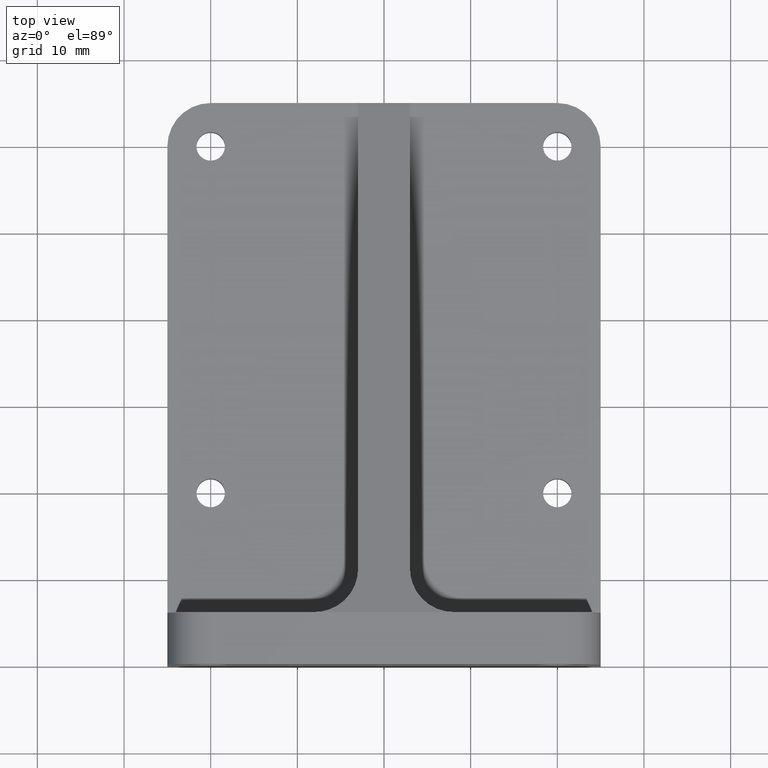
[diagram: clean part render]
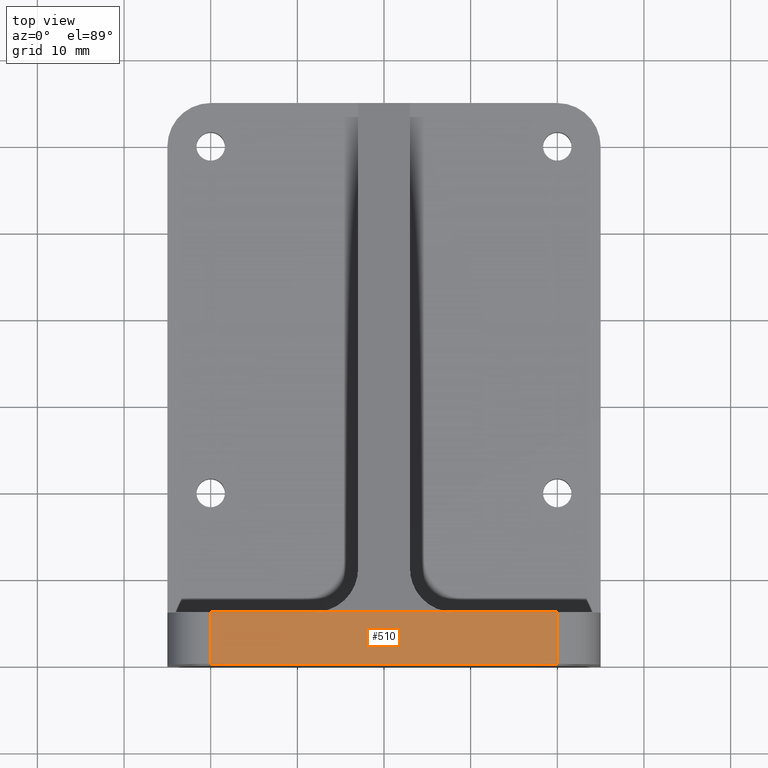
[diagram: same view with one face highlighted and labeled with its STEP entity id]
A machine part, top view. The second image highlights one B-rep face of the part: STEP entity #510.
In plain terms, the highlighted planar face has unit normal (0, 0, -1).
Its self-contained STEP definition (entity closure, byte-faithful):
#14 = VECTOR ( 'NONE', #310, 1000.000000000000000 ) ;
#38 = ORIENTED_EDGE ( 'NONE', *, *, #733, .F. ) ;
#42 = CARTESIAN_POINT ( 'NONE',  ( 25.00000000000000000, -2.449293598294706513E-15, 20.00000000000000000 ) ) ;
#139 = CARTESIAN_POINT ( 'NONE',  ( 20.00000000000000000, -2.449293598294706513E-15, 20.00000000000000000 ) ) ;
#142 = CARTESIAN_POINT ( 'NONE',  ( 20.00000000000000000, 5.999999999999997335, 20.00000000000000000 ) ) ;
#144 = ORIENTED_EDGE ( 'NONE', *, *, #257, .T. ) ;
#168 = CARTESIAN_POINT ( 'NONE',  ( -19.99999999999999645, -2.449293598294706513E-15, 20.00000000000000000 ) ) ;
#188 = ORIENTED_EDGE ( 'NONE', *, *, #608, .T. ) ;
#211 = LINE ( 'NONE', #786, #1236 ) ;
#237 = CARTESIAN_POINT ( 'NONE',  ( 25.00000000000000000, -2.449293598294706513E-15, 20.00000000000000000 ) ) ;
#257 = EDGE_CURVE ( 'NONE', #458, #851, #211, .T. ) ;
#285 = LINE ( 'NONE', #481, #597 ) ;
#295 = CARTESIAN_POINT ( 'NONE',  ( 25.00000000000000000, 5.999999999999997335, 20.00000000000000000 ) ) ;
#297 = EDGE_CURVE ( 'NONE', #851, #1053, #416, .T. ) ;
#310 = DIRECTION ( 'NONE',  ( -1.000000000000000000, -0.0000000000000000000, -0.0000000000000000000 ) ) ;
#407 = CARTESIAN_POINT ( 'NONE',  ( -19.99999999999999645, 5.999999999999997335, 20.00000000000000000 ) ) ;
#409 = DIRECTION ( 'NONE',  ( -1.000000000000000000, -0.0000000000000000000, -0.0000000000000000000 ) ) ;
#416 = LINE ( 'NONE', #621, #701 ) ;
#420 = DIRECTION ( 'NONE',  ( 0.0000000000000000000, 0.0000000000000000000, -1.000000000000000000 ) ) ;
#426 = EDGE_CURVE ( 'NONE', #458, #951, #915, .T. ) ;
#451 = LINE ( 'NONE', #933, #802 ) ;
#458 = VERTEX_POINT ( 'NONE', #139 ) ;
#463 = ORIENTED_EDGE ( 'NONE', *, *, #426, .F. ) ;
#479 = DIRECTION ( 'NONE',  ( 0.0000000000000000000, -1.000000000000000000, 0.0000000000000000000 ) ) ;
#481 = CARTESIAN_POINT ( 'NONE',  ( -19.99999999999999645, -2.449293598294706513E-15, 20.00000000000000000 ) ) ;
#510 = ADVANCED_FACE ( 'NONE', ( #726 ), #924, .F. ) ;
#552 = AXIS2_PLACEMENT_3D ( 'NONE', #237, #420, #810 ) ;
#597 = VECTOR ( 'NONE', #479, 1000.000000000000000 ) ;
#608 = EDGE_CURVE ( 'NONE', #669, #951, #285, .T. ) ;
#621 = CARTESIAN_POINT ( 'NONE',  ( 25.00000000000000000, 5.999999999999997335, 20.00000000000000000 ) ) ;
#625 = VERTEX_POINT ( 'NONE', #962 ) ;
#669 = VERTEX_POINT ( 'NONE', #407 ) ;
#691 = LINE ( 'NONE', #295, #14 ) ;
#701 = VECTOR ( 'NONE', #409, 1000.000000000000000 ) ;
#726 = FACE_OUTER_BOUND ( 'NONE', #960, .T. ) ;
#733 = EDGE_CURVE ( 'NONE', #669, #625, #451, .T. ) ;
#786 = CARTESIAN_POINT ( 'NONE',  ( 20.00000000000000000, -2.449293598294706513E-15, 20.00000000000000000 ) ) ;
#802 = VECTOR ( 'NONE', #841, 1000.000000000000000 ) ;
#810 = DIRECTION ( 'NONE',  ( -1.000000000000000000, 0.0000000000000000000, -0.0000000000000000000 ) ) ;
#814 = DIRECTION ( 'NONE',  ( -0.0000000000000000000, 1.000000000000000000, -0.0000000000000000000 ) ) ;
#821 = DIRECTION ( 'NONE',  ( -1.000000000000000000, -0.0000000000000000000, -0.0000000000000000000 ) ) ;
#841 = DIRECTION ( 'NONE',  ( 1.000000000000000000, 0.0000000000000000000, 0.0000000000000000000 ) ) ;
#851 = VERTEX_POINT ( 'NONE', #142 ) ;
#915 = LINE ( 'NONE', #42, #943 ) ;
#924 = PLANE ( 'NONE',  #552 ) ;
#933 = CARTESIAN_POINT ( 'NONE',  ( -25.00000000000000000, 5.999999999999997335, 20.00000000000000000 ) ) ;
#943 = VECTOR ( 'NONE', #821, 1000.000000000000000 ) ;
#950 = ORIENTED_EDGE ( 'NONE', *, *, #297, .T. ) ;
#951 = VERTEX_POINT ( 'NONE', #168 ) ;
#960 = EDGE_LOOP ( 'NONE', ( #463, #144, #950, #1199, #38, #188 ) ) ;
#962 = CARTESIAN_POINT ( 'NONE',  ( -7.999999999999992895, 5.999999999999997335, 20.00000000000000000 ) ) ;
#1053 = VERTEX_POINT ( 'NONE', #1080 ) ;
#1080 = CARTESIAN_POINT ( 'NONE',  ( 8.000000000000007105, 5.999999999999997335, 20.00000000000000000 ) ) ;
#1085 = EDGE_CURVE ( 'NONE', #1053, #625, #691, .T. ) ;
#1199 = ORIENTED_EDGE ( 'NONE', *, *, #1085, .T. ) ;
#1236 = VECTOR ( 'NONE', #814, 1000.000000000000000 ) ;